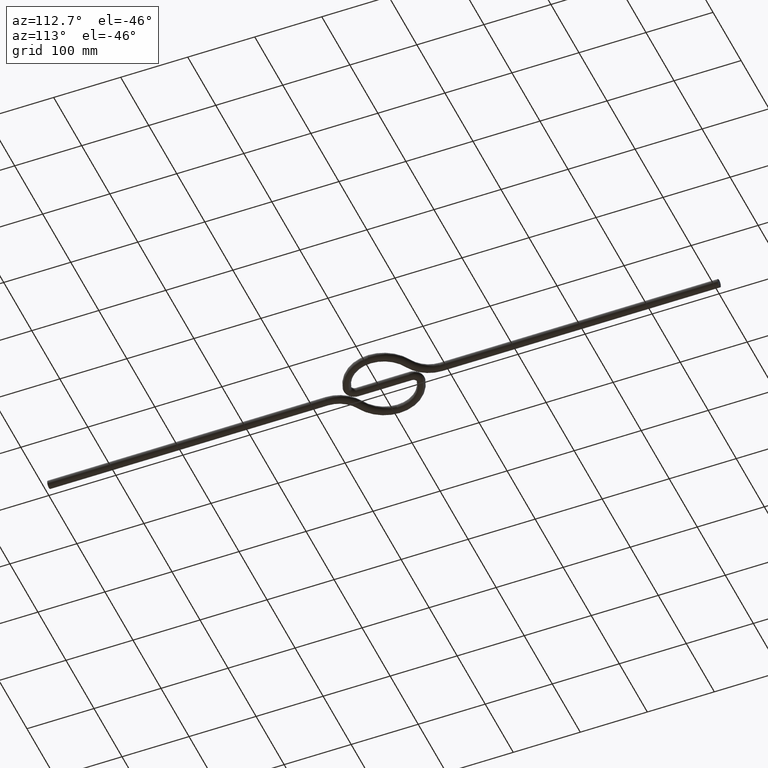
[diagram: clean part render]
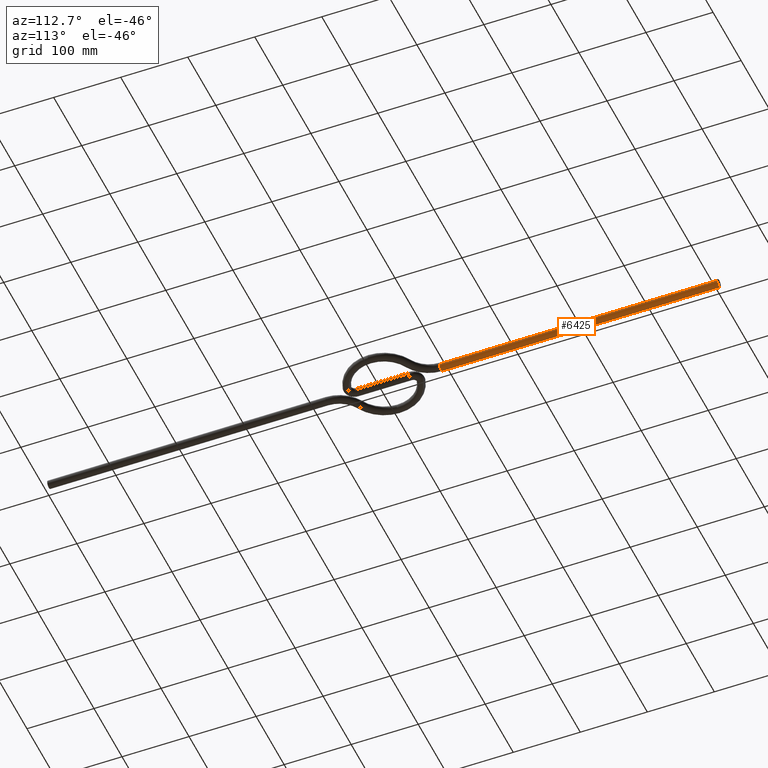
[diagram: same view with one face highlighted and labeled with its STEP entity id]
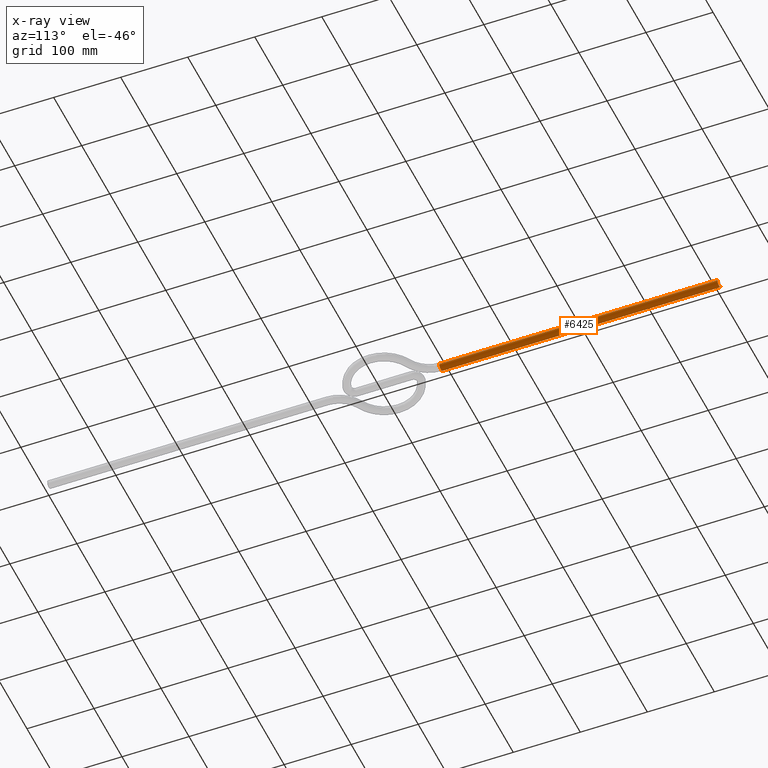
[diagram: x-ray of the same camera — body ghosted, the highlighted face saturated]
A machine part, auxiliary view. The second image highlights one B-rep face of the part: STEP entity #6425.
The next image is the same camera in x-ray: the body ghosted, the highlighted face saturated — about 0% of this face is hidden behind the body in this view.
In plain terms, the highlighted cylindrical surface (edge-blend (fillet) strip) has radius 6 mm, axis along (0, 1, 0).
Its self-contained STEP definition (entity closure, byte-faithful):
#180 = AXIS2_PLACEMENT_3D ( 'NONE', #3453, #4959, #824 ) ;
#347 = ORIENTED_EDGE ( 'NONE', *, *, #1848, .F. ) ;
#401 = DIRECTION ( 'NONE',  ( 8.360113137237623700E-017, 1.000000000000000000, 0.0000000000000000000 ) ) ;
#464 = CARTESIAN_POINT ( 'NONE',  ( 5.999999999999834800, 584.9999999999997700, 7.347880794884120700E-016 ) ) ;
#479 = DIRECTION ( 'NONE',  ( 8.360113137237623700E-017, 1.000000000000000000, 0.0000000000000000000 ) ) ;
#544 = VERTEX_POINT ( 'NONE', #4690 ) ;
#677 = ORIENTED_EDGE ( 'NONE', *, *, #3663, .T. ) ;
#707 = LINE ( 'NONE', #464, #4683 ) ;
#786 = CIRCLE ( 'NONE', #1335, 6.000000000000000000 ) ;
#824 = DIRECTION ( 'NONE',  ( -1.000000000000000000, 0.0000000000000000000, 0.0000000000000000000 ) ) ;
#939 = CARTESIAN_POINT ( 'NONE',  ( 5.999999999999835700, 584.9999999999997700, 7.347880794884122700E-016 ) ) ;
#1335 = AXIS2_PLACEMENT_3D ( 'NONE', #5859, #5840, #5834 ) ;
#1447 = EDGE_CURVE ( 'NONE', #6459, #5787, #707, .T. ) ;
#1623 = VERTEX_POINT ( 'NONE', #5411 ) ;
#1757 = CARTESIAN_POINT ( 'NONE',  ( -1.665334536937734800E-013, 584.9999999999997700, 0.0000000000000000000 ) ) ;
#1848 = EDGE_CURVE ( 'NONE', #5787, #544, #786, .T. ) ;
#2281 = DIRECTION ( 'NONE',  ( 0.0000000000000000000, 0.0000000000000000000, 1.000000000000000000 ) ) ;
#2800 = AXIS2_PLACEMENT_3D ( 'NONE', #1757, #5337, #2281 ) ;
#2945 = CARTESIAN_POINT ( 'NONE',  ( 5.999999999999870300, 999.9999999999997700, 7.347880794884143400E-016 ) ) ;
#3075 = CYLINDRICAL_SURFACE ( 'NONE', #180, 6.000000000000000900 ) ;
#3138 = EDGE_CURVE ( 'NONE', #6459, #1623, #3567, .T. ) ;
#3453 = CARTESIAN_POINT ( 'NONE',  ( -1.665334536937734800E-013, 584.9999999999997700, 0.0000000000000000000 ) ) ;
#3567 = CIRCLE ( 'NONE', #2800, 6.000000000000000000 ) ;
#3663 = EDGE_CURVE ( 'NONE', #1623, #544, #6065, .T. ) ;
#3955 = EDGE_LOOP ( 'NONE', ( #4462, #5297, #677, #347 ) ) ;
#4021 = CARTESIAN_POINT ( 'NONE',  ( -6.000000000000167900, 584.9999999999997700, 0.0000000000000000000 ) ) ;
#4462 = ORIENTED_EDGE ( 'NONE', *, *, #1447, .F. ) ;
#4683 = VECTOR ( 'NONE', #479, 1000.000000000000000 ) ;
#4690 = CARTESIAN_POINT ( 'NONE',  ( -6.000000000000134100, 999.9999999999997700, 0.0000000000000000000 ) ) ;
#4696 = VECTOR ( 'NONE', #401, 1000.000000000000000 ) ;
#4959 = DIRECTION ( 'NONE',  ( 8.360113137237623700E-017, 1.000000000000000000, 0.0000000000000000000 ) ) ;
#5297 = ORIENTED_EDGE ( 'NONE', *, *, #3138, .T. ) ;
#5337 = DIRECTION ( 'NONE',  ( 1.942890293094024300E-015, 1.000000000000000000, 0.0000000000000000000 ) ) ;
#5411 = CARTESIAN_POINT ( 'NONE',  ( -6.000000000000168800, 584.9999999999997700, 0.0000000000000000000 ) ) ;
#5711 = FACE_OUTER_BOUND ( 'NONE', #3955, .T. ) ;
#5787 = VERTEX_POINT ( 'NONE', #2945 ) ;
#5834 = DIRECTION ( 'NONE',  ( 0.0000000000000000000, 0.0000000000000000000, 1.000000000000000000 ) ) ;
#5840 = DIRECTION ( 'NONE',  ( 1.942890293094024300E-015, 1.000000000000000000, 0.0000000000000000000 ) ) ;
#5859 = CARTESIAN_POINT ( 'NONE',  ( -1.318389841742373400E-013, 999.9999999999997700, 0.0000000000000000000 ) ) ;
#6065 = LINE ( 'NONE', #4021, #4696 ) ;
#6425 = ADVANCED_FACE ( 'NONE', ( #5711 ), #3075, .T. ) ;
#6459 = VERTEX_POINT ( 'NONE', #939 ) ;